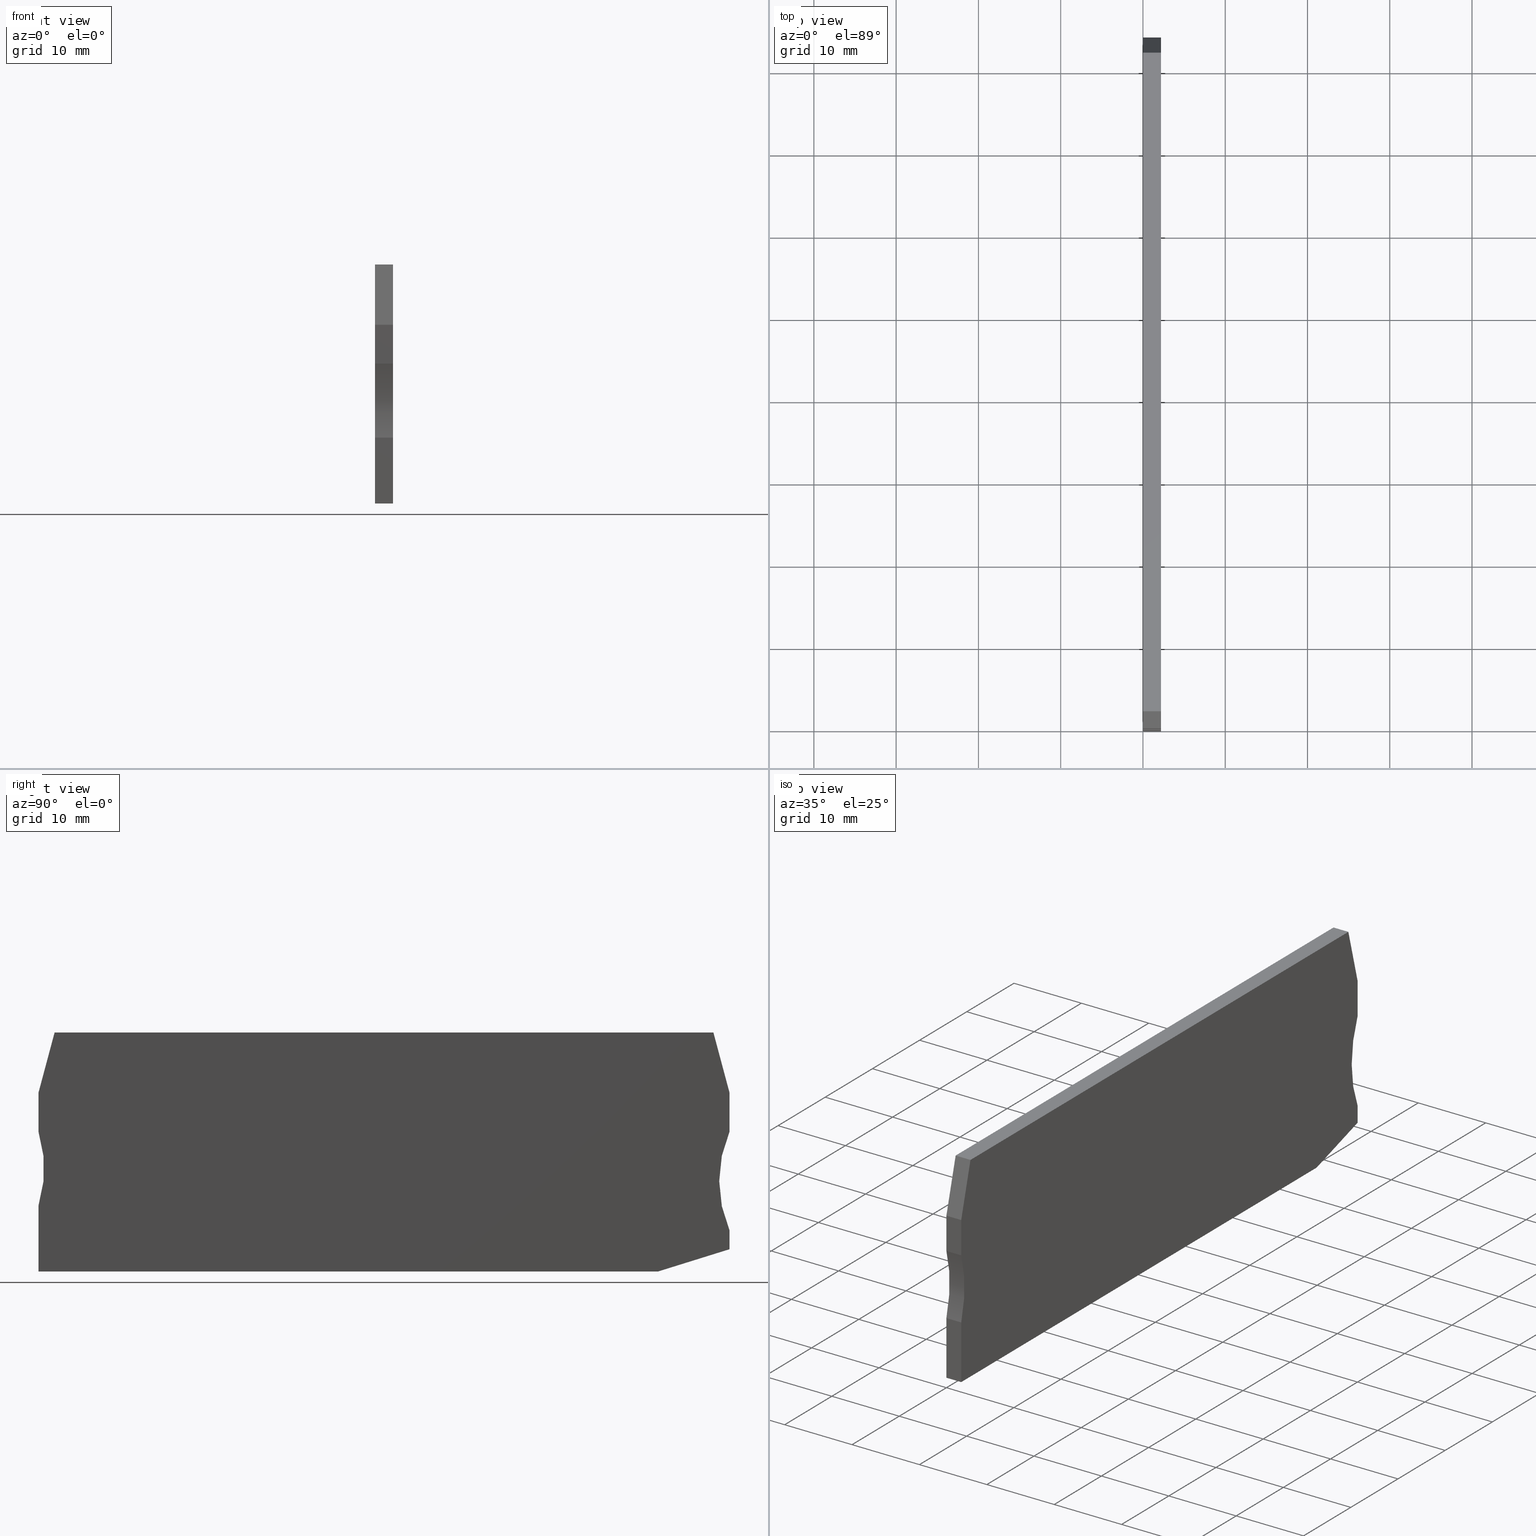
[diagram: canonical four-view strip — front | top / right | iso, engineering-drawing reading convention]
A machine part, canonical four-view strip (front | top / right | iso — engineering-drawing reading convention). The complete STEP part file that produces these views, byte-faithful:
ISO-10303-21;
HEADER;
FILE_DESCRIPTION(('Creo Elements/Direct Modeling STEP Export'),'2;1');
FILE_NAME(
'C:/temp/JobSpoolerServerData/JobServer Files/9ffd431f-008f-4502-bff0-a9
14f1a0984d/work/output/model.stp','2019-10-25T 0:39:03',(''),(''),
'Creo Elements/Direct Modeling STEP processor for AP214 (Solid Model)',
'Creo Elements/Direct Modeling 20.1A  29-Sep-2018 (C) Parametric Technol
ogy GmbH','');
FILE_SCHEMA(('AUTOMOTIVE_DESIGN { 1 0 10303 214 1 1 1 1 }'));
ENDSEC;
DATA;
#10=CARTESIAN_POINT('',(-34.1678327783247,-21.2000000000028,53.17));
#20=DIRECTION('',(-1.,0.,0.));
#30=DIRECTION('',(0.,1.,0.));
#40=AXIS2_PLACEMENT_3D('',#10,#20,#30);
#50=PLANE('',#40);
#60=CARTESIAN_POINT('',(-34.1678327783247,-12.1300507694265,53.17));
#70=DIRECTION('',(0.,-1.,0.));
#80=VECTOR('',#70,1.);
#90=LINE('',#60,#80);
#100=CARTESIAN_POINT('',(-34.1678327783247,-16.4655444566093,53.17));
#110=VERTEX_POINT('',#100);
#120=CARTESIAN_POINT('',(-34.1678327783247,-21.2000000000028,53.17));
#130=VERTEX_POINT('',#120);
#140=EDGE_CURVE('',#110,#130,#90,.T.);
#150=ORIENTED_EDGE('',*,*,#140,.T.);
#160=CARTESIAN_POINT('',(-34.1678327783247,-16.4655444566093,53.17));
#170=DIRECTION('',(0.,0.,1.));
#180=VECTOR('',#170,1.);
#190=LINE('',#160,#180);
#200=CARTESIAN_POINT('',(-34.1678327783247,-16.4655444566093,55.37));
#210=VERTEX_POINT('',#200);
#220=EDGE_CURVE('',#110,#210,#190,.T.);
#230=ORIENTED_EDGE('',*,*,#220,.F.);
#240=CARTESIAN_POINT('',(-34.1678327783247,-12.1300507694265,55.37));
#250=DIRECTION('',(0.,-1.,0.));
#260=VECTOR('',#250,1.);
#270=LINE('',#240,#260);
#280=CARTESIAN_POINT('',(-34.1678327783247,-21.2000000000028,55.37));
#290=VERTEX_POINT('',#280);
#300=EDGE_CURVE('',#210,#290,#270,.T.);
#310=ORIENTED_EDGE('',*,*,#300,.F.);
#320=CARTESIAN_POINT('',(-34.1678327783247,-21.2000000000028,53.17));
#330=DIRECTION('',(0.,0.,1.));
#340=VECTOR('',#330,1.);
#350=LINE('',#320,#340);
#360=EDGE_CURVE('',#130,#290,#350,.T.);
#370=ORIENTED_EDGE('',*,*,#360,.T.);
#380=EDGE_LOOP('',(#370,#310,#230,#150));
#390=FACE_OUTER_BOUND('',#380,.T.);
#400=ADVANCED_FACE('',(#390),#50,.T.);
#410=COLOUR_RGB('',0.560784339904785,0.588235318660736,0.600000023841858
);
#420=FILL_AREA_STYLE_COLOUR('',#410);
#430=FILL_AREA_STYLE('',(#420));
#440=SURFACE_STYLE_FILL_AREA(#430);
#450=SURFACE_SIDE_STYLE('',(#440));
#460=SURFACE_STYLE_USAGE(.BOTH.,#450);
#470=PRESENTATION_STYLE_ASSIGNMENT((#460));
#480=CARTESIAN_POINT('',(21.526862657344,-44.3095385146157,53.17));
#490=DIRECTION('',(0.297347717834187,-0.954769257307126,0.));
#500=DIRECTION('',(-0.954769257307126,-0.297347717834187,0.));
#510=AXIS2_PLACEMENT_3D('',#480,#490,#500);
#520=PLANE('',#510);
#530=CARTESIAN_POINT('',(49.8321672216756,-35.4943010628528,53.17));
#540=DIRECTION('',(0.,0.,1.));
#550=VECTOR('',#540,1.);
#560=LINE('',#530,#550);
#570=CARTESIAN_POINT('',(49.8321672216756,-35.4943010628528,53.17));
#580=VERTEX_POINT('',#570);
#590=CARTESIAN_POINT('',(49.8321672216756,-35.4943010628528,55.37));
#600=VERTEX_POINT('',#590);
#610=EDGE_CURVE('',#580,#600,#560,.T.);
#620=ORIENTED_EDGE('',*,*,#610,.T.);
#630=CARTESIAN_POINT('',(11.4461541156283,-47.4490150489618,53.17));
#640=DIRECTION('',(0.954769257307126,0.297347717834187,0.));
#650=VECTOR('',#640,1.);
#660=LINE('',#630,#650);
#670=CARTESIAN_POINT('',(41.1442977349533,-38.2000000000015,53.17));
#680=VERTEX_POINT('',#670);
#690=EDGE_CURVE('',#680,#580,#660,.T.);
#700=ORIENTED_EDGE('',*,*,#690,.T.);
#710=CARTESIAN_POINT('',(41.1442977349533,-38.2000000000015,53.17));
#720=DIRECTION('',(0.,0.,1.));
#730=VECTOR('',#720,1.);
#740=LINE('',#710,#730);
#750=CARTESIAN_POINT('',(41.1442977349533,-38.2000000000015,55.37));
#760=VERTEX_POINT('',#750);
#770=EDGE_CURVE('',#680,#760,#740,.T.);
#780=ORIENTED_EDGE('',*,*,#770,.F.);
#790=CARTESIAN_POINT('',(11.4461541156283,-47.4490150489618,55.37));
#800=DIRECTION('',(-0.954769257307126,-0.297347717834187,0.));
#810=VECTOR('',#800,1.);
#820=LINE('',#790,#810);
#830=EDGE_CURVE('',#600,#760,#820,.T.);
#840=ORIENTED_EDGE('',*,*,#830,.T.);
#850=EDGE_LOOP('',(#840,#780,#700,#620));
#860=FACE_OUTER_BOUND('',#850,.T.);
#870=ADVANCED_FACE('',(#860),#520,.T.);
#880=COLOUR_RGB('',0.560784339904785,0.588235318660736,0.600000023841858
);
#890=FILL_AREA_STYLE_COLOUR('',#880);
#900=FILL_AREA_STYLE('',(#890));
#910=SURFACE_STYLE_FILL_AREA(#900);
#920=SURFACE_SIDE_STYLE('',(#910));
#930=SURFACE_STYLE_USAGE(.BOTH.,#920);
#940=PRESENTATION_STYLE_ASSIGNMENT((#930));
#950=CARTESIAN_POINT('',(49.8321672216757,-40.0736249892382,
53.1700000000027));
#960=DIRECTION('',(1.,-5.55111512312578E-17,0.));
#970=DIRECTION('',(-5.55111512312578E-17,-1.,0.));
#980=AXIS2_PLACEMENT_3D('',#950,#960,#970);
#990=PLANE('',#980);
#1000=CARTESIAN_POINT('',(49.8321672216757,-12.1300507694265,55.37));
#1010=DIRECTION('',(5.55111512312578E-17,1.,0.));
#1020=VECTOR('',#1010,1.);
#1030=LINE('',#1000,#1020);
#1040=CARTESIAN_POINT('',(49.8321672216757,-21.2000000000025,55.37));
#1050=VERTEX_POINT('',#1040);
#1060=CARTESIAN_POINT('',(49.8321672216757,-16.4655444566131,55.37));
#1070=VERTEX_POINT('',#1060);
#1080=EDGE_CURVE('',#1050,#1070,#1030,.T.);
#1090=ORIENTED_EDGE('',*,*,#1080,.F.);
#1100=CARTESIAN_POINT('',(49.8321672216757,-16.4655444566131,53.17));
#1110=DIRECTION('',(0.,0.,1.));
#1120=VECTOR('',#1110,1.);
#1130=LINE('',#1100,#1120);
#1140=CARTESIAN_POINT('',(49.8321672216757,-16.4655444566132,53.17));
#1150=VERTEX_POINT('',#1140);
#1160=EDGE_CURVE('',#1150,#1070,#1130,.T.);
#1170=ORIENTED_EDGE('',*,*,#1160,.T.);
#1180=CARTESIAN_POINT('',(49.8321672216757,-12.1300507694265,53.17));
#1190=DIRECTION('',(5.55111512312578E-17,1.,0.));
#1200=VECTOR('',#1190,1.);
#1210=LINE('',#1180,#1200);
#1220=CARTESIAN_POINT('',(49.8321672216757,-21.2000000000025,53.17));
#1230=VERTEX_POINT('',#1220);
#1240=EDGE_CURVE('',#1230,#1150,#1210,.T.);
#1250=ORIENTED_EDGE('',*,*,#1240,.T.);
#1260=CARTESIAN_POINT('',(49.8321672216757,-21.2000000000025,
53.1700000000027));
#1270=DIRECTION('',(0.,0.,1.));
#1280=VECTOR('',#1270,1.);
#1290=LINE('',#1260,#1280);
#1300=EDGE_CURVE('',#1230,#1050,#1290,.T.);
#1310=ORIENTED_EDGE('',*,*,#1300,.F.);
#1320=EDGE_LOOP('',(#1310,#1250,#1170,#1090));
#1330=FACE_OUTER_BOUND('',#1320,.T.);
#1340=ADVANCED_FACE('',(#1330),#990,.T.);
#1350=COLOUR_RGB('',0.560784339904785,0.588235318660736,
0.600000023841858);
#1360=FILL_AREA_STYLE_COLOUR('',#1350);
#1370=FILL_AREA_STYLE('',(#1360));
#1380=SURFACE_STYLE_FILL_AREA(#1370);
#1390=SURFACE_SIDE_STYLE('',(#1380));
#1400=SURFACE_STYLE_USAGE(.BOTH.,#1390);
#1410=PRESENTATION_STYLE_ASSIGNMENT((#1400));
#1420=CARTESIAN_POINT('',(35.840579,-37.08196,55.37));
#1430=DIRECTION('',(0.,0.,-1.));
#1440=DIRECTION('',(-1.,0.,0.));
#1450=AXIS2_PLACEMENT_3D('',#1420,#1430,#1440);
#1460=PLANE('',#1450);
#1470=CARTESIAN_POINT('',(63.5798943065431,-27.2000000000027,55.37));
#1480=DIRECTION('',(0.,0.,1.));
#1490=DIRECTION('',(1.,0.,0.));
#1500=AXIS2_PLACEMENT_3D('',#1470,#1480,#1490);
#1510=CIRCLE('',#1500,15.);
#1520=CARTESIAN_POINT('',(49.8321672216756,-33.2000000000027,55.37));
#1530=VERTEX_POINT('',#1520);
#1540=EDGE_CURVE('',#1050,#1530,#1510,.T.);
#1550=ORIENTED_EDGE('',*,*,#1540,.F.);
#1560=CARTESIAN_POINT('',(49.8321672216756,-12.1300507694265,55.37));
#1570=DIRECTION('',(8.32667268468867E-17,1.,0.));
#1580=VECTOR('',#1570,1.);
#1590=LINE('',#1560,#1580);
#1600=EDGE_CURVE('',#600,#1530,#1590,.T.);
#1610=ORIENTED_EDGE('',*,*,#1600,.T.);
#1620=ORIENTED_EDGE('',*,*,#830,.F.);
#1630=CARTESIAN_POINT('',(11.4461541156283,-38.2000000000015,55.37));
#1640=DIRECTION('',(1.,0.,0.));
#1650=VECTOR('',#1640,1.);
#1660=LINE('',#1630,#1650);
#1670=CARTESIAN_POINT('',(-34.1678327783247,-38.2000000000015,55.37));
#1680=VERTEX_POINT('',#1670);
#1690=EDGE_CURVE('',#1680,#760,#1660,.T.);
#1700=ORIENTED_EDGE('',*,*,#1690,.T.);
#1710=CARTESIAN_POINT('',(-34.1678327783247,-12.1300507694265,55.37));
#1720=DIRECTION('',(0.,-1.,0.));
#1730=VECTOR('',#1720,1.);
#1740=LINE('',#1710,#1730);
#1750=CARTESIAN_POINT('',(-34.1678327783247,-30.2000000000027,55.37));
#1760=VERTEX_POINT('',#1750);
#1770=EDGE_CURVE('',#1760,#1680,#1740,.T.);
#1780=ORIENTED_EDGE('',*,*,#1770,.T.);
#1790=CARTESIAN_POINT('',(-48.4769207995789,-25.7000000000027,55.37));
#1800=DIRECTION('',(0.,0.,1.));
#1810=DIRECTION('',(1.,0.,0.));
#1820=AXIS2_PLACEMENT_3D('',#1790,#1800,#1810);
#1830=CIRCLE('',#1820,15.);
#1840=EDGE_CURVE('',#1760,#290,#1830,.T.);
#1850=ORIENTED_EDGE('',*,*,#1840,.F.);
#1860=ORIENTED_EDGE('',*,*,#300,.T.);
#1870=CARTESIAN_POINT('',(-33.0061407460509,-12.1300507694265,55.37));
#1880=DIRECTION('',(-0.258819045103118,-0.965925826288908,0.));
#1890=VECTOR('',#1880,1.);
#1900=LINE('',#1870,#1890);
#1910=CARTESIAN_POINT('',(-32.2076385489778,-9.15000000000162,55.37));
#1920=VERTEX_POINT('',#1910);
#1930=EDGE_CURVE('',#1920,#210,#1900,.T.);
#1940=ORIENTED_EDGE('',*,*,#1930,.T.);
#1950=CARTESIAN_POINT('',(11.4461541156283,-9.15000000000162,55.37));
#1960=DIRECTION('',(-1.,0.,0.));
#1970=VECTOR('',#1960,1.);
#1980=LINE('',#1950,#1970);
#1990=CARTESIAN_POINT('',(47.8719729923293,-9.15000000000162,55.37));
#2000=VERTEX_POINT('',#1990);
#2010=EDGE_CURVE('',#2000,#1920,#1980,.T.);
#2020=ORIENTED_EDGE('',*,*,#2010,.T.);
#2030=CARTESIAN_POINT('',(48.6704751894018,-12.1300507694265,55.37));
#2040=DIRECTION('',(-0.258819045102926,0.96592582628896,0.));
#2050=VECTOR('',#2040,1.);
#2060=LINE('',#2030,#2050);
#2070=EDGE_CURVE('',#1070,#2000,#2060,.T.);
#2080=ORIENTED_EDGE('',*,*,#2070,.T.);
#2090=ORIENTED_EDGE('',*,*,#1080,.T.);
#2100=EDGE_LOOP('',(#2090,#2080,#2020,#1940,#1860,#1850,#1780,#1700,
#1620,#1610,#1550));
#2110=FACE_OUTER_BOUND('',#2100,.T.);
#2120=ADVANCED_FACE('',(#2110),#1460,.F.);
#2130=COLOUR_RGB('',0.560784339904785,0.588235318660736,
0.600000023841858);
#2140=FILL_AREA_STYLE_COLOUR('',#2130);
#2150=FILL_AREA_STYLE('',(#2140));
#2160=SURFACE_STYLE_FILL_AREA(#2150);
#2170=SURFACE_SIDE_STYLE('',(#2160));
#2180=SURFACE_STYLE_USAGE(.BOTH.,#2170);
#2190=PRESENTATION_STYLE_ASSIGNMENT((#2180));
#2200=CARTESIAN_POINT('',(49.8021485469815,-16.3535132374789,
53.1700000000027));
#2210=DIRECTION('',(0.96592582628896,0.258819045102926,0.));
#2220=DIRECTION('',(0.258819045102926,-0.96592582628896,0.));
#2230=AXIS2_PLACEMENT_3D('',#2200,#2210,#2220);
#2240=PLANE('',#2230);
#2250=CARTESIAN_POINT('',(47.8719729923293,-9.15000000000162,53.17));
#2260=DIRECTION('',(0.,0.,1.));
#2270=VECTOR('',#2260,1.);
#2280=LINE('',#2250,#2270);
#2290=CARTESIAN_POINT('',(47.8719729923293,-9.15000000000162,53.17));
#2300=VERTEX_POINT('',#2290);
#2310=EDGE_CURVE('',#2300,#2000,#2280,.T.);
#2320=ORIENTED_EDGE('',*,*,#2310,.T.);
#2330=CARTESIAN_POINT('',(48.6704751894018,-12.1300507694265,53.17));
#2340=DIRECTION('',(-0.258819045102926,0.96592582628896,0.));
#2350=VECTOR('',#2340,1.);
#2360=LINE('',#2330,#2350);
#2370=EDGE_CURVE('',#1150,#2300,#2360,.T.);
#2380=ORIENTED_EDGE('',*,*,#2370,.T.);
#2390=ORIENTED_EDGE('',*,*,#1160,.F.);
#2400=ORIENTED_EDGE('',*,*,#2070,.F.);
#2410=EDGE_LOOP('',(#2400,#2390,#2380,#2320));
#2420=FACE_OUTER_BOUND('',#2410,.T.);
#2430=ADVANCED_FACE('',(#2420),#2240,.T.);
#2440=COLOUR_RGB('',0.560784339904785,0.588235318660736,
0.600000023841858);
#2450=FILL_AREA_STYLE_COLOUR('',#2440);
#2460=FILL_AREA_STYLE('',(#2450));
#2470=SURFACE_STYLE_FILL_AREA(#2460);
#2480=SURFACE_SIDE_STYLE('',(#2470));
#2490=SURFACE_STYLE_USAGE(.BOTH.,#2480);
#2500=PRESENTATION_STYLE_ASSIGNMENT((#2490));
#2510=CARTESIAN_POINT('',(-9.98600127514363,-9.86732155189016,53.17));
#2520=DIRECTION('',(0.,0.,-1.));
#2530=DIRECTION('',(-1.,0.,0.));
#2540=AXIS2_PLACEMENT_3D('',#2510,#2520,#2530);
#2550=PLANE('',#2540);
#2560=ORIENTED_EDGE('',*,*,#1240,.F.);
#2570=ORIENTED_EDGE('',*,*,#2370,.F.);
#2580=CARTESIAN_POINT('',(11.4461541156283,-9.15000000000162,53.17));
#2590=DIRECTION('',(-1.,0.,0.));
#2600=VECTOR('',#2590,1.);
#2610=LINE('',#2580,#2600);
#2620=CARTESIAN_POINT('',(-32.2076385489778,-9.15000000000162,53.17));
#2630=VERTEX_POINT('',#2620);
#2640=EDGE_CURVE('',#2300,#2630,#2610,.T.);
#2650=ORIENTED_EDGE('',*,*,#2640,.F.);
#2660=CARTESIAN_POINT('',(-33.0061407460509,-12.1300507694265,53.17));
#2670=DIRECTION('',(-0.258819045103118,-0.965925826288908,0.));
#2680=VECTOR('',#2670,1.);
#2690=LINE('',#2660,#2680);
#2700=EDGE_CURVE('',#2630,#110,#2690,.T.);
#2710=ORIENTED_EDGE('',*,*,#2700,.F.);
#2720=ORIENTED_EDGE('',*,*,#140,.F.);
#2730=CARTESIAN_POINT('',(-48.4769207995789,-25.7000000000027,53.17));
#2740=DIRECTION('',(0.,0.,1.));
#2750=DIRECTION('',(1.,0.,0.));
#2760=AXIS2_PLACEMENT_3D('',#2730,#2740,#2750);
#2770=CIRCLE('',#2760,15.);
#2780=CARTESIAN_POINT('',(-34.1678327783247,-30.2000000000027,53.17));
#2790=VERTEX_POINT('',#2780);
#2800=EDGE_CURVE('',#2790,#130,#2770,.T.);
#2810=ORIENTED_EDGE('',*,*,#2800,.T.);
#2820=CARTESIAN_POINT('',(-34.1678327783247,-12.1300507694265,53.17));
#2830=DIRECTION('',(0.,-1.,0.));
#2840=VECTOR('',#2830,1.);
#2850=LINE('',#2820,#2840);
#2860=CARTESIAN_POINT('',(-34.1678327783247,-38.2000000000015,53.17));
#2870=VERTEX_POINT('',#2860);
#2880=EDGE_CURVE('',#2790,#2870,#2850,.T.);
#2890=ORIENTED_EDGE('',*,*,#2880,.F.);
#2900=CARTESIAN_POINT('',(11.4461541156283,-38.2000000000015,53.17));
#2910=DIRECTION('',(1.,0.,0.));
#2920=VECTOR('',#2910,1.);
#2930=LINE('',#2900,#2920);
#2940=EDGE_CURVE('',#2870,#680,#2930,.T.);
#2950=ORIENTED_EDGE('',*,*,#2940,.F.);
#2960=ORIENTED_EDGE('',*,*,#690,.F.);
#2970=CARTESIAN_POINT('',(49.8321672216756,-12.1300507694265,53.17));
#2980=DIRECTION('',(8.32667268468867E-17,1.,0.));
#2990=VECTOR('',#2980,1.);
#3000=LINE('',#2970,#2990);
#3010=CARTESIAN_POINT('',(49.8321672216756,-33.2000000000027,53.17));
#3020=VERTEX_POINT('',#3010);
#3030=EDGE_CURVE('',#580,#3020,#3000,.T.);
#3040=ORIENTED_EDGE('',*,*,#3030,.F.);
#3050=CARTESIAN_POINT('',(63.5798943065431,-27.2000000000027,53.17));
#3060=DIRECTION('',(0.,0.,1.));
#3070=DIRECTION('',(1.,0.,0.));
#3080=AXIS2_PLACEMENT_3D('',#3050,#3060,#3070);
#3090=CIRCLE('',#3080,15.);
#3100=EDGE_CURVE('',#1230,#3020,#3090,.T.);
#3110=ORIENTED_EDGE('',*,*,#3100,.T.);
#3120=EDGE_LOOP('',(#3110,#3040,#2960,#2950,#2890,#2810,#2720,#2710,
#2650,#2570,#2560));
#3130=FACE_OUTER_BOUND('',#3120,.T.);
#3140=ADVANCED_FACE('',(#3130),#2550,.T.);
#3150=COLOUR_RGB('',0.560784339904785,0.588235318660736,
0.600000023841858);
#3160=FILL_AREA_STYLE_COLOUR('',#3150);
#3170=FILL_AREA_STYLE('',(#3160));
#3180=SURFACE_STYLE_FILL_AREA(#3170);
#3190=SURFACE_SIDE_STYLE('',(#3180));
#3200=SURFACE_STYLE_USAGE(.BOTH.,#3190);
#3210=PRESENTATION_STYLE_ASSIGNMENT((#3200));
#3220=CARTESIAN_POINT('',(32.578459389798,-38.2000000000015,53.17));
#3230=DIRECTION('',(-0.,-1.,-0.));
#3240=DIRECTION('',(-1.,0.,0.));
#3250=AXIS2_PLACEMENT_3D('',#3220,#3230,#3240);
#3260=PLANE('',#3250);
#3270=ORIENTED_EDGE('',*,*,#2940,.T.);
#3280=CARTESIAN_POINT('',(-34.1678327783247,-38.2000000000015,53.17));
#3290=DIRECTION('',(0.,0.,1.));
#3300=VECTOR('',#3290,1.);
#3310=LINE('',#3280,#3300);
#3320=EDGE_CURVE('',#2870,#1680,#3310,.T.);
#3330=ORIENTED_EDGE('',*,*,#3320,.F.);
#3340=ORIENTED_EDGE('',*,*,#1690,.F.);
#3350=ORIENTED_EDGE('',*,*,#770,.T.);
#3360=EDGE_LOOP('',(#3350,#3340,#3330,#3270));
#3370=FACE_OUTER_BOUND('',#3360,.T.);
#3380=ADVANCED_FACE('',(#3370),#3260,.T.);
#3390=COLOUR_RGB('',0.560784339904785,0.588235318660736,
0.600000023841858);
#3400=FILL_AREA_STYLE_COLOUR('',#3390);
#3410=FILL_AREA_STYLE('',(#3400));
#3420=SURFACE_STYLE_FILL_AREA(#3410);
#3430=SURFACE_SIDE_STYLE('',(#3420));
#3440=SURFACE_STYLE_USAGE(.BOTH.,#3430);
#3450=PRESENTATION_STYLE_ASSIGNMENT((#3440));
#3460=CARTESIAN_POINT('',(63.5798943065431,-27.2000000000027,
53.1700000000027));
#3470=DIRECTION('',(0.,0.,1.));
#3480=DIRECTION('',(1.,0.,0.));
#3490=AXIS2_PLACEMENT_3D('',#3460,#3470,#3480);
#3500=CYLINDRICAL_SURFACE('',#3490,15.);
#3510=ORIENTED_EDGE('',*,*,#1300,.T.);
#3520=ORIENTED_EDGE('',*,*,#3100,.F.);
#3530=CARTESIAN_POINT('',(49.8321672216756,-33.2000000000027,
53.1700000000027));
#3540=DIRECTION('',(0.,0.,1.));
#3550=VECTOR('',#3540,1.);
#3560=LINE('',#3530,#3550);
#3570=EDGE_CURVE('',#3020,#1530,#3560,.T.);
#3580=ORIENTED_EDGE('',*,*,#3570,.F.);
#3590=ORIENTED_EDGE('',*,*,#1540,.T.);
#3600=EDGE_LOOP('',(#3590,#3580,#3520,#3510));
#3610=FACE_OUTER_BOUND('',#3600,.T.);
#3620=ADVANCED_FACE('',(#3610),#3500,.F.);
#3630=COLOUR_RGB('',0.560784339904785,0.588235318660736,
0.600000023841858);
#3640=FILL_AREA_STYLE_COLOUR('',#3630);
#3650=FILL_AREA_STYLE('',(#3640));
#3660=SURFACE_STYLE_FILL_AREA(#3650);
#3670=SURFACE_SIDE_STYLE('',(#3660));
#3680=SURFACE_STYLE_USAGE(.BOTH.,#3670);
#3690=PRESENTATION_STYLE_ASSIGNMENT((#3680));
#3700=CARTESIAN_POINT('',(49.8321672216756,-34.7822160349097,
52.6700000000027));
#3710=DIRECTION('',(1.,-8.32667268468867E-17,0.));
#3720=DIRECTION('',(-8.32667268468867E-17,-1.,0.));
#3730=AXIS2_PLACEMENT_3D('',#3700,#3710,#3720);
#3740=PLANE('',#3730);
#3750=ORIENTED_EDGE('',*,*,#1600,.F.);
#3760=ORIENTED_EDGE('',*,*,#3570,.T.);
#3770=ORIENTED_EDGE('',*,*,#3030,.T.);
#3780=ORIENTED_EDGE('',*,*,#610,.F.);
#3790=EDGE_LOOP('',(#3780,#3770,#3760,#3750));
#3800=FACE_OUTER_BOUND('',#3790,.T.);
#3810=ADVANCED_FACE('',(#3800),#3740,.T.);
#3820=COLOUR_RGB('',0.560784339904785,0.588235318660736,
0.600000023841858);
#3830=FILL_AREA_STYLE_COLOUR('',#3820);
#3840=FILL_AREA_STYLE('',(#3830));
#3850=SURFACE_STYLE_FILL_AREA(#3840);
#3860=SURFACE_SIDE_STYLE('',(#3850));
#3870=SURFACE_STYLE_USAGE(.BOTH.,#3860);
#3880=PRESENTATION_STYLE_ASSIGNMENT((#3870));
#3890=CARTESIAN_POINT('',(-34.1678327783247,-38.2000000000015,53.17));
#3900=DIRECTION('',(-1.,0.,0.));
#3910=DIRECTION('',(0.,1.,0.));
#3920=AXIS2_PLACEMENT_3D('',#3890,#3900,#3910);
#3930=PLANE('',#3920);
#3940=ORIENTED_EDGE('',*,*,#3320,.T.);
#3950=ORIENTED_EDGE('',*,*,#2880,.T.);
#3960=CARTESIAN_POINT('',(-34.1678327783247,-30.2000000000027,53.17));
#3970=DIRECTION('',(0.,0.,1.));
#3980=VECTOR('',#3970,1.);
#3990=LINE('',#3960,#3980);
#4000=EDGE_CURVE('',#2790,#1760,#3990,.T.);
#4010=ORIENTED_EDGE('',*,*,#4000,.F.);
#4020=ORIENTED_EDGE('',*,*,#1770,.F.);
#4030=EDGE_LOOP('',(#4020,#4010,#3950,#3940));
#4040=FACE_OUTER_BOUND('',#4030,.T.);
#4050=ADVANCED_FACE('',(#4040),#3930,.T.);
#4060=COLOUR_RGB('',0.560784339904785,0.588235318660736,
0.600000023841858);
#4070=FILL_AREA_STYLE_COLOUR('',#4060);
#4080=FILL_AREA_STYLE('',(#4070));
#4090=SURFACE_STYLE_FILL_AREA(#4080);
#4100=SURFACE_SIDE_STYLE('',(#4090));
#4110=SURFACE_STYLE_USAGE(.BOTH.,#4100);
#4120=PRESENTATION_STYLE_ASSIGNMENT((#4110));
#4130=CARTESIAN_POINT('',(-48.4769207995789,-25.7000000000027,53.17));
#4140=DIRECTION('',(0.,0.,1.));
#4150=DIRECTION('',(1.,0.,0.));
#4160=AXIS2_PLACEMENT_3D('',#4130,#4140,#4150);
#4170=CYLINDRICAL_SURFACE('',#4160,15.);
#4180=ORIENTED_EDGE('',*,*,#2800,.F.);
#4190=ORIENTED_EDGE('',*,*,#360,.F.);
#4200=ORIENTED_EDGE('',*,*,#1840,.T.);
#4210=ORIENTED_EDGE('',*,*,#4000,.T.);
#4220=EDGE_LOOP('',(#4210,#4200,#4190,#4180));
#4230=FACE_OUTER_BOUND('',#4220,.T.);
#4240=ADVANCED_FACE('',(#4230),#4170,.F.);
#4250=COLOUR_RGB('',0.560784339904785,0.588235318660736,
0.600000023841858);
#4260=FILL_AREA_STYLE_COLOUR('',#4250);
#4270=FILL_AREA_STYLE('',(#4260));
#4280=SURFACE_STYLE_FILL_AREA(#4270);
#4290=SURFACE_SIDE_STYLE('',(#4280));
#4300=SURFACE_STYLE_USAGE(.BOTH.,#4290);
#4310=PRESENTATION_STYLE_ASSIGNMENT((#4300));
#4320=CARTESIAN_POINT('',(-34.1798353230829,-16.510338563467,53.17));
#4330=DIRECTION('',(-0.965925826288908,0.258819045103118,0.));
#4340=DIRECTION('',(0.258819045103118,0.965925826288908,0.));
#4350=AXIS2_PLACEMENT_3D('',#4320,#4330,#4340);
#4360=PLANE('',#4350);
#4370=ORIENTED_EDGE('',*,*,#2700,.T.);
#4380=CARTESIAN_POINT('',(-32.2076385489778,-9.15000000000162,53.17));
#4390=DIRECTION('',(0.,0.,1.));
#4400=VECTOR('',#4390,1.);
#4410=LINE('',#4380,#4400);
#4420=EDGE_CURVE('',#2630,#1920,#4410,.T.);
#4430=ORIENTED_EDGE('',*,*,#4420,.F.);
#4440=ORIENTED_EDGE('',*,*,#1930,.F.);
#4450=ORIENTED_EDGE('',*,*,#220,.T.);
#4460=EDGE_LOOP('',(#4450,#4440,#4430,#4370));
#4470=FACE_OUTER_BOUND('',#4460,.T.);
#4480=ADVANCED_FACE('',(#4470),#4360,.T.);
#4490=COLOUR_RGB('',0.560784339904785,0.588235318660736,
0.600000023841858);
#4500=FILL_AREA_STYLE_COLOUR('',#4490);
#4510=FILL_AREA_STYLE('',(#4500));
#4520=SURFACE_STYLE_FILL_AREA(#4510);
#4530=SURFACE_SIDE_STYLE('',(#4520));
#4540=SURFACE_STYLE_USAGE(.BOTH.,#4530);
#4550=PRESENTATION_STYLE_ASSIGNMENT((#4540));
#4560=CARTESIAN_POINT('',(-5.33035950726473,-9.15000000000162,
54.9881177917553));
#4570=DIRECTION('',(0.,1.,-0.));
#4580=DIRECTION('',(-1.,0.,0.));
#4590=AXIS2_PLACEMENT_3D('',#4560,#4570,#4580);
#4600=PLANE('',#4590);
#4610=ORIENTED_EDGE('',*,*,#2010,.F.);
#4620=ORIENTED_EDGE('',*,*,#4420,.T.);
#4630=ORIENTED_EDGE('',*,*,#2640,.T.);
#4640=ORIENTED_EDGE('',*,*,#2310,.F.);
#4650=EDGE_LOOP('',(#4640,#4630,#4620,#4610));
#4660=FACE_OUTER_BOUND('',#4650,.T.);
#4670=ADVANCED_FACE('',(#4660),#4600,.T.);
#4680=COLOUR_RGB('',0.560784339904785,0.588235318660736,
0.600000023841858);
#4690=FILL_AREA_STYLE_COLOUR('',#4680);
#4700=FILL_AREA_STYLE('',(#4690));
#4710=SURFACE_STYLE_FILL_AREA(#4700);
#4720=SURFACE_SIDE_STYLE('',(#4710));
#4730=SURFACE_STYLE_USAGE(.BOTH.,#4720);
#4740=PRESENTATION_STYLE_ASSIGNMENT((#4730));
#4750=CLOSED_SHELL('',(#400,#870,#1340,#2120,#2430,#3140,#3380,#3620,
#3810,#4050,#4240,#4480,#4670));
#4760=MANIFOLD_SOLID_BREP('',#4750);
#4770=CARTESIAN_POINT('',(0.,0.,0.));
#4780=DIRECTION('',(0.,0.,1.));
#4790=DIRECTION('',(1.,0.,0.));
#4800=AXIS2_PLACEMENT_3D('',#4770,#4780,#4790);
#4810=APPLICATION_CONTEXT(' ');
#4820=APPLICATION_PROTOCOL_DEFINITION(' ','automotive_design',1998,#4810
);
#4830=PRODUCT_CONTEXT('',#4810,'mechanical');
#4840=PRODUCT_DEFINITION_CONTEXT('part definition',#4810,'design');
#4850=PRODUCT('D_ST_25-QUATTRO-MT-SELECT','D_ST_25-QUATTRO-MT-SELECT',''
,(#4830));
#4860=PRODUCT_RELATED_PRODUCT_CATEGORY('part',' ',(#4850));
#4870=PRODUCT_DEFINITION_FORMATION_WITH_SPECIFIED_SOURCE('','',#4850,
.BOUGHT.);
#4880=PRODUCT_DEFINITION('',' ',#4870,#4840);
#4890=PRODUCT_DEFINITION_SHAPE('','',#4880);
#4900=DIMENSIONAL_EXPONENTS(1.,0.,0.,0.,0.,0.,0.);
#4910=DIMENSIONAL_EXPONENTS(0.,0.,0.,0.,0.,0.,0.);
#4920=DIMENSIONAL_EXPONENTS(0.,0.,0.,0.,0.,0.,0.);
#4930=(LENGTH_UNIT() NAMED_UNIT(*) SI_UNIT(.MILLI.,.METRE.));
#4940=(NAMED_UNIT(*) PLANE_ANGLE_UNIT() SI_UNIT($,.RADIAN.));
#4950=(NAMED_UNIT(*) SI_UNIT($,.STERADIAN.) SOLID_ANGLE_UNIT());
#4960=(GEOMETRIC_REPRESENTATION_CONTEXT(3) 
GLOBAL_UNCERTAINTY_ASSIGNED_CONTEXT((#4970)) 
GLOBAL_UNIT_ASSIGNED_CONTEXT((#4930,#4940,#4950)) REPRESENTATION_CONTEXT
('',''));
#4970=UNCERTAINTY_MEASURE_WITH_UNIT(LENGTH_MEASURE(1.E-6),#4930,
'distance_accuracy_value','maximum gap value');
#4980=ADVANCED_BREP_SHAPE_REPRESENTATION('',(#4800,#4760),#4960);
#4990=SHAPE_DEFINITION_REPRESENTATION(#4890,#4980);
#5000=COLOUR_RGB('',0.560784339904785,0.588235318660736,
0.600000023841858);
#5010=FILL_AREA_STYLE_COLOUR('',#5000);
#5020=FILL_AREA_STYLE('',(#5010));
#5030=SURFACE_STYLE_FILL_AREA(#5020);
#5040=SURFACE_SIDE_STYLE('',(#5030));
#5050=SURFACE_STYLE_USAGE(.BOTH.,#5040);
#5060=PRESENTATION_STYLE_ASSIGNMENT((#5050));
#5070=STYLED_ITEM('',(#5060),#4760);
#5080=OVER_RIDING_STYLED_ITEM('',(#470),#400,#5070);
#5090=OVER_RIDING_STYLED_ITEM('',(#940),#870,#5070);
#5100=OVER_RIDING_STYLED_ITEM('',(#1410),#1340,#5070);
#5110=OVER_RIDING_STYLED_ITEM('',(#2190),#2120,#5070);
#5120=OVER_RIDING_STYLED_ITEM('',(#2500),#2430,#5070);
#5130=OVER_RIDING_STYLED_ITEM('',(#3210),#3140,#5070);
#5140=OVER_RIDING_STYLED_ITEM('',(#3450),#3380,#5070);
#5150=OVER_RIDING_STYLED_ITEM('',(#3690),#3620,#5070);
#5160=OVER_RIDING_STYLED_ITEM('',(#3880),#3810,#5070);
#5170=OVER_RIDING_STYLED_ITEM('',(#4120),#4050,#5070);
#5180=OVER_RIDING_STYLED_ITEM('',(#4310),#4240,#5070);
#5190=OVER_RIDING_STYLED_ITEM('',(#4550),#4480,#5070);
#5200=OVER_RIDING_STYLED_ITEM('',(#4740),#4670,#5070);
#5210=DRAUGHTING_MODEL('',(#5070,#5080,#5090,#5100,#5110,#5120,#5130,
#5140,#5150,#5160,#5170,#5180,#5190,#5200),#4960);
#5220=CARTESIAN_POINT('',(-53.17,34.1678327783247,38.2000000000015));
#5230=DIRECTION('',(1.,-5.55111512312578E-17,5.55111512312578E-17));
#5240=DIRECTION('',(5.55111512312578E-17,1.,-5.55111512312578E-17));
#5250=AXIS2_PLACEMENT_3D('',#5220,#5230,#5240);
#5260=ITEM_DEFINED_TRANSFORMATION('D_ST_25-QUATTRO-MT-SELECT','',#4800,
#5250);
#5270=APPLICATION_CONTEXT(' ');
#5280=APPLICATION_PROTOCOL_DEFINITION(' ','automotive_design',1998,#5270
);
#5290=PRODUCT_CONTEXT('',#5270,'mechanical');
#5300=PRODUCT_DEFINITION_CONTEXT('part definition',#5270,'design');
#5310=PRODUCT('D_ST_25-QUATTRO-MT-SELECT','D_ST_25-QUATTRO-MT-SELECT',''
,(#5290));
#5320=PRODUCT_RELATED_PRODUCT_CATEGORY('part',' ',(#5310));
#5330=PRODUCT_DEFINITION_FORMATION_WITH_SPECIFIED_SOURCE('','',#5310,
.BOUGHT.);
#5340=PRODUCT_DEFINITION('',' ',#5330,#5300);
#5350=PRODUCT_DEFINITION_SHAPE('','',#5340);
#5360=DIMENSIONAL_EXPONENTS(1.,0.,0.,0.,0.,0.,0.);
#5370=DIMENSIONAL_EXPONENTS(0.,0.,0.,0.,0.,0.,0.);
#5380=DIMENSIONAL_EXPONENTS(0.,0.,0.,0.,0.,0.,0.);
#5390=(LENGTH_UNIT() NAMED_UNIT(*) SI_UNIT(.MILLI.,.METRE.));
#5400=(NAMED_UNIT(*) PLANE_ANGLE_UNIT() SI_UNIT($,.RADIAN.));
#5410=(NAMED_UNIT(*) SI_UNIT($,.STERADIAN.) SOLID_ANGLE_UNIT());
#5420=(GEOMETRIC_REPRESENTATION_CONTEXT(3) 
GLOBAL_UNCERTAINTY_ASSIGNED_CONTEXT((#5430)) 
GLOBAL_UNIT_ASSIGNED_CONTEXT((#5390,#5400,#5410)) REPRESENTATION_CONTEXT
('',''));
#5430=UNCERTAINTY_MEASURE_WITH_UNIT(LENGTH_MEASURE(1.E-6),#5390,
'distance_accuracy_value','maximum gap value');
#5440=SHAPE_REPRESENTATION('',(#4800,#5250),#5420);
#5450=SHAPE_DEFINITION_REPRESENTATION(#5350,#5440);
#5460=(REPRESENTATION_RELATIONSHIP('','',#4980,#5440) 
REPRESENTATION_RELATIONSHIP_WITH_TRANSFORMATION(#5260) 
SHAPE_REPRESENTATION_RELATIONSHIP());
#5470=NEXT_ASSEMBLY_USAGE_OCCURRENCE('1','','D_ST_25-QUATTRO-MT-SELECT',
#5340,#4880,'');
#5480=PRODUCT_DEFINITION_SHAPE('','',#5470);
#5490=CONTEXT_DEPENDENT_SHAPE_REPRESENTATION(#5460,#5480);
ENDSEC;
END-ISO-10303-21;
